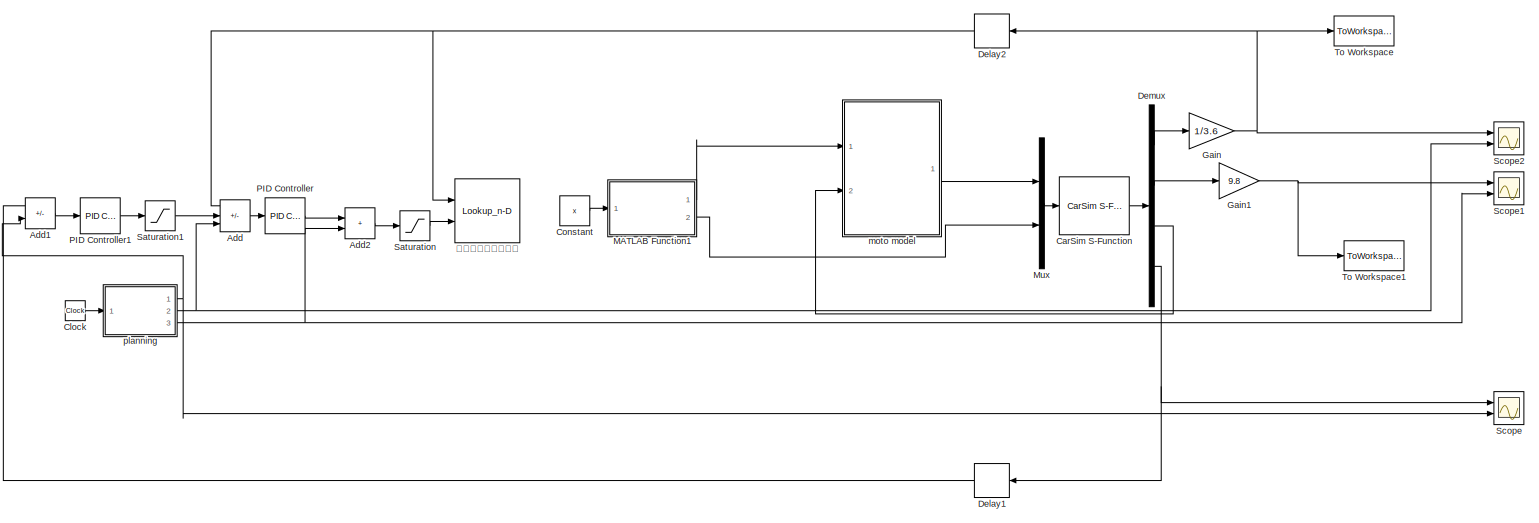
[diagram: root canvas - part 1/1, most of the canvas]
MODEL slx_631891888e7b
KIND model
CONFIG AbsTol = auto
CONFIG EnableMultiTasking = off
CONFIG FixedStep = auto
CONFIG MaxStep = auto
CONFIG MinStep = auto
CONFIG RelTol = 1e-3
CONFIG SampleTimeConstraint = Unconstrained
CONFIG SolverName = VariableStepAuto
CONFIG StartTime = 0.0
CONFIG StopTime = 60
BLOCK [Sum] Add
  IconShape = rectangular
  Inputs = -++
  Ports = [3, 1]
BLOCK [Sum] Add1
  IconShape = rectangular
  Inputs = -+
  Ports = [2, 1]
BLOCK [Sum] Add2
  IconShape = rectangular
  Ports = [2, 1]
BLOCK [Reference] CarSim S-Function  REF=Solver_SF/CarSim S-Function
  Ports = [1, 1]
  Priority = 1
  SourceBlock = Solver_SF/CarSim S-Function
  SourceProductName = CarSim S-Function
  SourceType = Vehicle math model library
BLOCK [Clock] Clock
BLOCK [Constant] Constant
  Value = x
BLOCK [Delay] Delay1
  DelayLength = 10
  InputPortMap = u0
  NameLocation = top
  Ports = [1, 1]
BLOCK [Delay] Delay2
  DelayLength = 10
  InputPortMap = u0
  NameLocation = top
  Ports = [1, 1]
BLOCK [Demux] Demux
  Ports = [1, 4]
BLOCK [Gain] Gain
  Gain = 1/3.6
BLOCK [Gain] Gain1
  Gain = 9.8
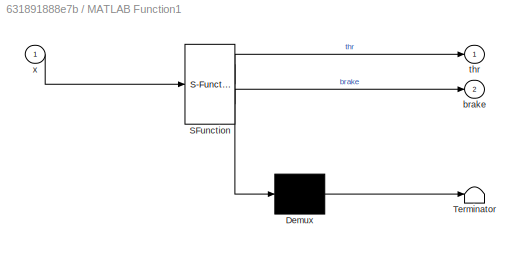
BLOCK [SubSystem] MATLAB Function1
  ErrorFcn = Stateflow.Translate.translate
  PermitHierarchicalResolution = ExplicitOnly
  Ports = [1, 2]
  RequestExecContextInheritance = off
  SFBlockType = MATLAB Function
  TreatAsAtomicUnit = on
BLOCK [Demux] MATLAB Function1/ Demux 
  Outputs = 1
  Ports = [1, 1]
BLOCK [S-Function] MATLAB Function1/ SFunction 
  EnableBusSupport = on
  FunctionName = sf_sfun
  PortCounts = [1 3]
  Ports = [1, 3]
  SFcnIsStateOwnerBlock = off
  SFunctionDeploymentMode = off
  Tag = Stateflow S-Function 1
BLOCK [Terminator] MATLAB Function1/ Terminator 
BLOCK [Outport] MATLAB Function1/brake
  Port = 2
  VectorParamsAs1DForOutWhenUnconnected = off
BLOCK [Outport] MATLAB Function1/thr
  VectorParamsAs1DForOutWhenUnconnected = off
BLOCK [Inport] MATLAB Function1/x
BLOCK [Mux] Mux
  DisplayOption = bar
  Inputs = 2
  Ports = [2, 1]
BLOCK [Reference] PID Controller  REF=slpidlib/PID Controller
  Ports = [1, 1]
  SourceBlock = slpidlib/PID Controller
  SourceProductBaseCode = SL
  SourceType = PID 1dof
BLOCK [Reference] PID Controller1  REF=slpidlib/PID Controller
  Ports = [1, 1]
  SourceBlock = slpidlib/PID Controller
  SourceProductBaseCode = SL
  SourceType = PID 1dof
BLOCK [Saturate] Saturation
  LowerLimit = -8
  UpperLimit = 5
BLOCK [Saturate] Saturation1
  LowerLimit = -8
  UpperLimit = 8
BLOCK [Scope] Scope
  Floating = off
  NumInputPorts = 2
  Ports = [2]
  ScopeSpecificationString = Simulink.scopes.TimeScopeBlockCfg('CurrentConfiguration', extmgr.ConfigurationSet(extmgr.Configuration('Core','General UI',true),extmgr.Configuration('Core','Source UI',true),extmgr.Configuration('Sources','WiredSimulink',true,'DataLoggingVariableName','ScopeData1'),extmgr.Configuration('Visuals','Time Domain',true,'SerializedDisplays',{struct('MinYLimReal','-123.73749','MaxYLimReal','1113.63743',...<+1397ch>
BLOCK [Scope] Scope1
  Floating = off
  NumInputPorts = 2
  Ports = [2]
  ScopeSpecificationString = Simulink.scopes.TimeScopeBlockCfg('CurrentConfiguration', extmgr.ConfigurationSet(extmgr.Configuration('Core','General UI',true),extmgr.Configuration('Core','Source UI',true),extmgr.Configuration('Sources','WiredSimulink',true),extmgr.Configuration('Visuals','Time Domain',true,'SerializedDisplays',{struct('MinYLimReal','-3.61991','MaxYLimReal','2.63272','YLabelReal','','MinYLimMag','0.00000','MaxY...<+1338ch>
BLOCK [Scope] Scope2
  Floating = off
  NumInputPorts = 2
  Ports = [2]
  ScopeSpecificationString = Simulink.scopes.TimeScopeBlockCfg('CurrentConfiguration', extmgr.ConfigurationSet(extmgr.Configuration('Core','General UI',true),extmgr.Configuration('Core','Source UI',true),extmgr.Configuration('Sources','WiredSimulink',true,'DataLoggingVariableName','ScopeData2'),extmgr.Configuration('Visuals','Time Domain',true,'SerializedDisplays',{struct('MinYLimReal','-20.50357','MaxYLimReal','35.61151','YL...<+1382ch>
BLOCK [ToWorkspace] To Workspace
  FixptAsFi = on
  MaxDataPoints = inf
  Ports = [1]
  SampleTime = 0.15
  SaveFormat = Timeseries
  VariableName = vx
BLOCK [ToWorkspace] To Workspace1
  FixptAsFi = on
  MaxDataPoints = inf
  Ports = [1]
  SampleTime = 0.15
  SaveFormat = Timeseries
  VariableName = ax
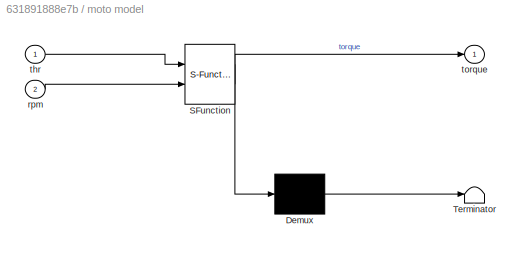
BLOCK [SubSystem] moto model
  ErrorFcn = Stateflow.Translate.translate
  PermitHierarchicalResolution = ExplicitOnly
  Ports = [2, 1]
  RequestExecContextInheritance = off
  SFBlockType = MATLAB Function
  TreatAsAtomicUnit = on
BLOCK [Demux] moto model/ Demux 
  Outputs = 1
  Ports = [1, 1]
BLOCK [S-Function] moto model/ SFunction 
  EnableBusSupport = on
  FunctionName = sf_sfun
  PortCounts = [2 2]
  Ports = [2, 2]
  SFcnIsStateOwnerBlock = off
  SFunctionDeploymentMode = off
  Tag = Stateflow S-Function 2
BLOCK [Terminator] moto model/ Terminator 
BLOCK [Inport] moto model/rpm
  Port = 2
BLOCK [Inport] moto model/thr
BLOCK [Outport] moto model/torque
  VectorParamsAs1DForOutWhenUnconnected = off
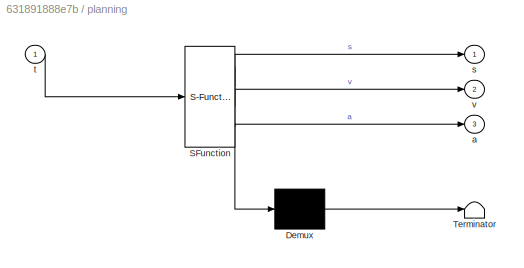
BLOCK [SubSystem] planning
  ErrorFcn = Stateflow.Translate.translate
  PermitHierarchicalResolution = ExplicitOnly
  Ports = [1, 3]
  RequestExecContextInheritance = off
  SFBlockType = MATLAB Function
  TreatAsAtomicUnit = on
BLOCK [Demux] planning/ Demux 
  Outputs = 1
  Ports = [1, 1]
BLOCK [S-Function] planning/ SFunction 
  EnableBusSupport = on
  FunctionName = sf_sfun
  PortCounts = [1 4]
  Ports = [1, 4]
  SFcnIsStateOwnerBlock = off
  SFunctionDeploymentMode = off
  Tag = Stateflow S-Function 3
BLOCK [Terminator] planning/ Terminator 
BLOCK [Outport] planning/a
  Port = 3
  VectorParamsAs1DForOutWhenUnconnected = off
BLOCK [Outport] planning/s
  VectorParamsAs1DForOutWhenUnconnected = off
BLOCK [Inport] planning/t
BLOCK [Outport] planning/v
  Port = 2
  VectorParamsAs1DForOutWhenUnconnected = off
BLOCK [Lookup_n-D] 油门刹车合并标定表
  BreakpointsForDimension1 = vubr
  BreakpointsForDimension2 = aubr
  Commented = on
  InputPortMap = u0,u1
  InternalRulePriority = Speed
  Ports = [2, 1]
  RndMeth = Simplest
  Table = tablebr
LINE Add1:1 -> PID Controller1:1
LINE Add2:1 -> Saturation:1
LINE Add:1 -> PID Controller:1
LINE CarSim S-Function:1 -> Demux:1
LINE Clock:1 -> planning:1
LINE Constant:1 -> MATLAB Function1:1
LINE Delay1:1 -> Add1:1
NET Delay2:1 -> Add:1, 油门刹车合并标定表:1
LINE Demux:1 -> Gain:1
LINE Demux:2 -> Gain1:1
LINE Demux:3 -> moto model:2
NET Demux:4 -> Delay1:1, Scope:1
NET Gain1:1 -> Scope1:1, To Workspace1:1
NET Gain:1 -> Delay2:1, Scope2:1, To Workspace:1
LINE MATLAB Function1:1 -> moto model:1
LINE MATLAB Function1:2 -> Mux:2
LINE Mux:1 -> CarSim S-Function:1
LINE PID Controller1:1 -> Saturation1:1
LINE PID Controller:1 -> Add2:1
LINE Saturation1:1 -> Add:2
LINE Saturation:1 -> 油门刹车合并标定表:2
LINE moto model:1 -> Mux:1
NET planning:1 -> Add1:2, Scope:2
NET planning:2 -> Add:3, Scope2:2
NET planning:3 -> Add2:2, Scope1:2
note: NET lines group one-source signal fan-out (src -> all destinations, sorted); 1:1 wires keep LINE
CHART moto model states=1 transitions=1
  STATE_LABEL 'eML_blk_kernel()'
  STATE_LABEL 'SCRIPT:\nfunction torque = fcn(thr,rpm)\nTmax=380*thr;\n    if (rpm<=4523)\n        torque=Tmax;\n    else\n        torque=Tmax*4523/rpm;\n    end\nend\n'
CHART planning states=1 transitions=1
  STATE_LABEL 'eML_blk_kernel()'
  STATE_LABEL 'SCRIPT:\nfunction [s,v,a] = fcn(t)\nif t<10\n    s=0.1*t^3/3;\n    v=0.1*t^2;\n    a=0.2*t;\nelse\n    a=2-0.1*(t-10);\n    v=2*t-0.05*(t-10)^2-10;\n    s=t^2-0.05*(t-10)^3/3-10*t+100/3;\nend\n    '
CHART MATLAB Function1 states=1 transitions=1
  STATE_LABEL 'eML_blk_kernel()'
  STATE_LABEL 'SCRIPT:\nfunction [thr,brake] = fcn(x)\n    %正数代表油门，负数代表刹车\n    %不允许同时踩油门和刹车\n    if x>=0\n        thr=x;\n        brake=0;\n    else\n        thr=0;\n        brake=-x;\n    end\n'
CHART  states=0 transitions=0
CHART  states=0 transitions=0
CHART  states=0 transitions=0
